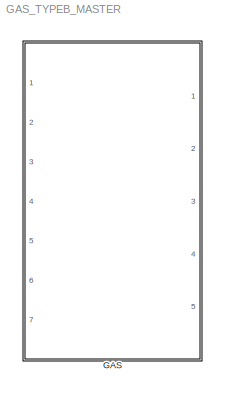
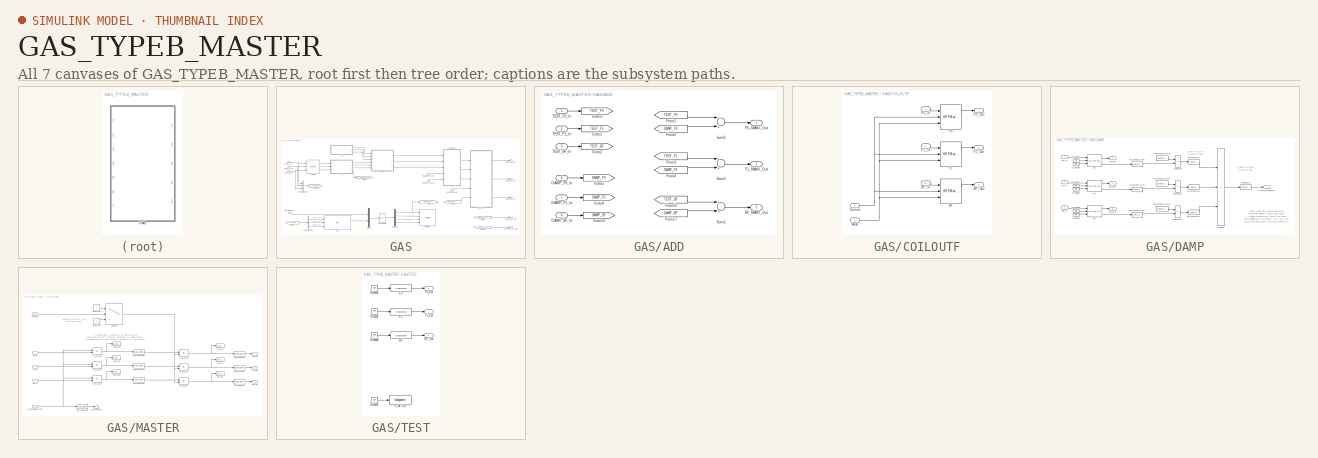
[diagram: thumbnail index - all 7 canvases of the model, root first then tree order]
MODEL GAS_TYPEB_MASTER
KIND library
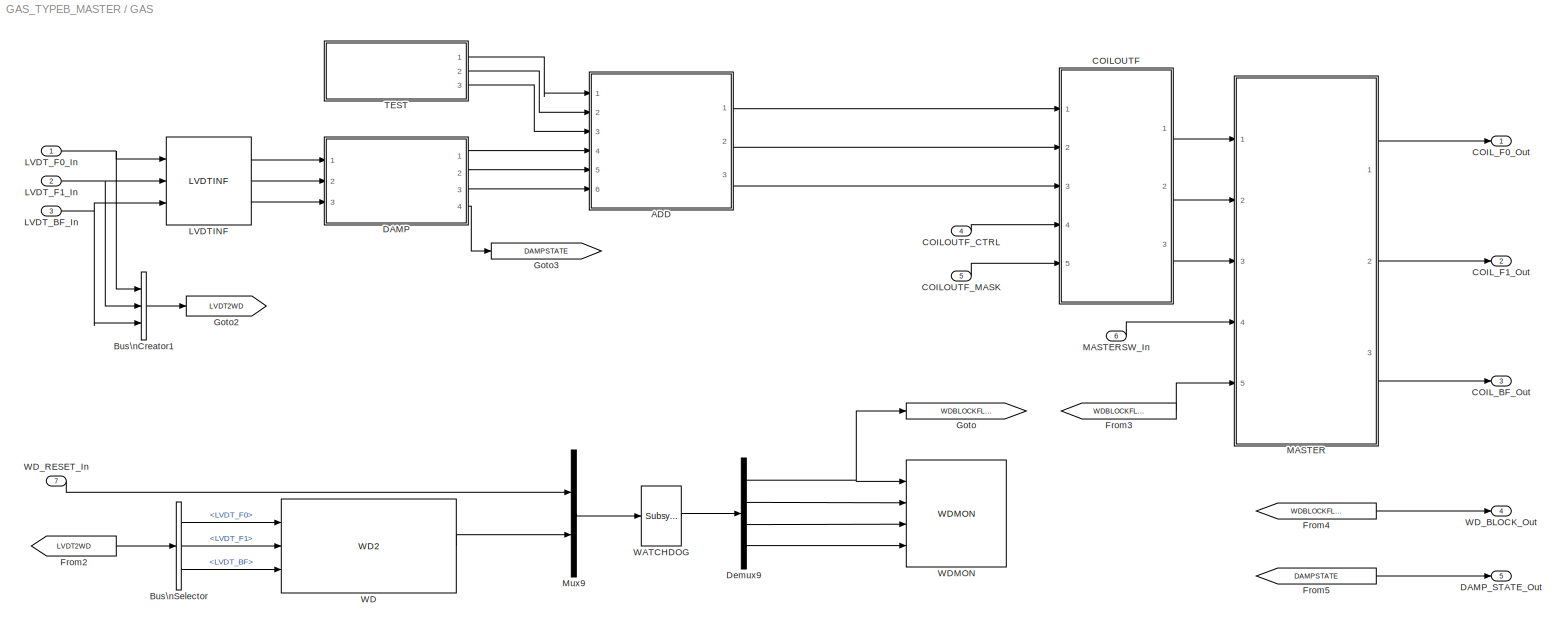
BLOCK [SubSystem] GAS
  Description = SIXOSEMSTAGE_FACE_MASTER
  Ports = [7, 5]
  RequestExecContextInheritance = off
  SID = 1
BLOCK [SubSystem] GAS/ADD
  Ports = [6, 3]
  RequestExecContextInheritance = off
  SID = 9
BLOCK [Outport] GAS/ADD/BF_MAIN_Out
  IconDisplay = Port number
  Port = 3
  SID = 33
BLOCK [Inport] GAS/ADD/DAMP_BF_In
  IconDisplay = Port number
  Port = 6
  SID = 15
BLOCK [Inport] GAS/ADD/DAMP_F0_In
  IconDisplay = Port number
  Port = 4
  SID = 13
BLOCK [Inport] GAS/ADD/DAMP_F1_In
  IconDisplay = Port number
  Port = 5
  SID = 14
BLOCK [Outport] GAS/ADD/F0_MAIN_Out
  IconDisplay = Port number
  SID = 31
BLOCK [Outport] GAS/ADD/F1_MAIN_Out
  IconDisplay = Port number
  Port = 2
  SID = 32
BLOCK [From] GAS/ADD/From1
  CloseFcn = tagdialog Close
  GotoTag = TEST_F0
  SID = 16
BLOCK [From] GAS/ADD/From16
  CloseFcn = tagdialog Close
  GotoTag = TEST_BF
  SID = 17
BLOCK [From] GAS/ADD/From17
  CloseFcn = tagdialog Close
  GotoTag = DAMP_BF
  SID = 18
BLOCK [From] GAS/ADD/From2
  CloseFcn = tagdialog Close
  GotoTag = DAMP_F0
  SID = 19
BLOCK [From] GAS/ADD/From3
  CloseFcn = tagdialog Close
  GotoTag = TEST_F1
  SID = 20
BLOCK [From] GAS/ADD/From4
  CloseFcn = tagdialog Close
  GotoTag = DAMP_F1
  SID = 21
BLOCK [Goto] GAS/ADD/Goto1
  GotoTag = TEST_F1
  SID = 22
BLOCK [Goto] GAS/ADD/Goto12
  GotoTag = DAMP_BF
  SID = 23
BLOCK [Goto] GAS/ADD/Goto2
  GotoTag = TEST_BF
  SID = 24
BLOCK [Goto] GAS/ADD/Goto3
  GotoTag = TEST_F0
  SID = 25
BLOCK [Goto] GAS/ADD/Goto4
  GotoTag = DAMP_F1
  SID = 26
BLOCK [Goto] GAS/ADD/Goto5
  GotoTag = DAMP_F0
  SID = 27
BLOCK [Sum] GAS/ADD/Sum1
  InputSameDT = off
  OutDataTypeStr = Inherit: Inherit via internal rule
  Ports = [2, 1]
  SID = 28
  SaturateOnIntegerOverflow = off
BLOCK [Sum] GAS/ADD/Sum2
  InputSameDT = off
  OutDataTypeStr = Inherit: Inherit via internal rule
  Ports = [2, 1]
  SID = 29
  SaturateOnIntegerOverflow = off
BLOCK [Sum] GAS/ADD/Sum3
  InputSameDT = off
  OutDataTypeStr = Inherit: Inherit via internal rule
  Ports = [2, 1]
  SID = 30
  SaturateOnIntegerOverflow = off
BLOCK [Inport] GAS/ADD/TEST_BF_In
  IconDisplay = Port number
  Port = 3
  SID = 12
BLOCK [Inport] GAS/ADD/TEST_F0_In
  IconDisplay = Port number
  SID = 10
BLOCK [Inport] GAS/ADD/TEST_F1_In
  IconDisplay = Port number
  Port = 2
  SID = 11
BLOCK [BusCreator] GAS/Bus\nCreator1
  DisplayOption = bar
  Inputs = 'LVDT_F0','LVDT_F1','LVDT_BF'
  Ports = [3, 1]
  SID = 34
BLOCK [BusSelector] GAS/Bus\nSelector
  OutputSignals = LVDT_F0,LVDT_F1,LVDT_BF
  Ports = [1, 3]
  SID = 35
BLOCK [SubSystem] GAS/COILOUTF
  Ports = [5, 3]
  RequestExecContextInheritance = off
  SID = 36
BLOCK [Reference] GAS/COILOUTF/BF  REF=cdsFiltCtrl/IIR FM with control
  AttributesFormatString = %<Tag>
  Description = cdsFiltCntrl is the standard IIR filter module (exactly the same as cdsFilt) but with added control data output 'Ctrl'. Filter module digital signal output appears on the first output, which is called 'Val'. 'Ctrl' output has a bit pattern encoding the state of filter's on/off switches (FM1 through FM10). The bit values are:\n                                                                        ...<+4621ch>  <repeated x6 — deduplicated; at blocks: BF, F0, F1>
  Ports = [3, 2]
  SID = 42
  SourceBlock = cdsFiltCtrl/IIR FM with control
  SourceType = SubSystem
  Tag = cdsFiltCtrl
BLOCK [Inport] GAS/COILOUTF/BF_In
  IconDisplay = Port number
  Port = 3
  SID = 39
BLOCK [Outport] GAS/COILOUTF/BF_Out
  IconDisplay = Port number
  Port = 3
  SID = 47
BLOCK [Inport] GAS/COILOUTF/Control
  IconDisplay = Port number
  Port = 4
  SID = 40
BLOCK [Reference] GAS/COILOUTF/F0  REF=cdsFiltCtrl/IIR FM with control
  AttributesFormatString = %<Tag>
  Ports = [3, 2]
  SID = 43
  SourceBlock = cdsFiltCtrl/IIR FM with control
  SourceType = SubSystem
  Tag = cdsFiltCtrl
BLOCK [Inport] GAS/COILOUTF/F0_In
  IconDisplay = Port number
  SID = 37
BLOCK [Outport] GAS/COILOUTF/F0_Out
  IconDisplay = Port number
  SID = 45
BLOCK [Reference] GAS/COILOUTF/F1  REF=cdsFiltCtrl/IIR FM with control
  AttributesFormatString = %<Tag>
  Ports = [3, 2]
  SID = 44
  SourceBlock = cdsFiltCtrl/IIR FM with control
  SourceType = SubSystem
  Tag = cdsFiltCtrl
BLOCK [Inport] GAS/COILOUTF/F1_In
  IconDisplay = Port number
  Port = 2
  SID = 38
BLOCK [Outport] GAS/COILOUTF/F1_Out
  IconDisplay = Port number
  Port = 2
  SID = 46
BLOCK [Inport] GAS/COILOUTF/Mask
  IconDisplay = Port number
  Port = 5
  SID = 41
BLOCK [Inport] GAS/COILOUTF_CTRL
  IconDisplay = Port number
  Port = 4
  SID = 5
BLOCK [Inport] GAS/COILOUTF_MASK
  IconDisplay = Port number
  Port = 5
  SID = 6
BLOCK [Outport] GAS/COIL_BF_Out
  IconDisplay = Port number
  Port = 3
  SID = 197
BLOCK [Outport] GAS/COIL_F0_Out
  IconDisplay = Port number
  SID = 195
BLOCK [Outport] GAS/COIL_F1_Out
  IconDisplay = Port number
  Port = 2
  SID = 196
BLOCK [SubSystem] GAS/DAMP
  Ports = [3, 4]
  RequestExecContextInheritance = off
  SID = 48
BLOCK [Reference] GAS/DAMP/BF  REF=cdsFiltCtrl/IIR FM with control
  AttributesFormatString = %<Tag>
  Ports = [3, 2]
  SID = 52
  SourceBlock = cdsFiltCtrl/IIR FM with control
  SourceType = SubSystem
  Tag = cdsFiltCtrl
BLOCK [Inport] GAS/DAMP/BF_In
  IconDisplay = Port number
  Port = 3
  SID = 51
BLOCK [Outport] GAS/DAMP/BF_Out
  IconDisplay = Port number
  Port = 3
  SID = 77
BLOCK [Reference] GAS/DAMP/BF_STATE_GOOD  REF=cdsEpicsIn/Subsystem
  AttributesFormatString = %<Tag>
  Description = Purpose:                                                                              \nCreate an EPICS input channel connection to the FE realtime controls.                 \n                                                                                      \nOperation:                                                                            \nOutputs value from an EPICS ai record. Value is ...<+266ch>  <repeated x3 — deduplicated; at blocks: BF_STATE_GOOD, F0_STATE_GOOD, F1_STATE_GOOD>
  Ports = [0, 1]
  SID = 53
  SourceBlock = cdsEpicsIn/Subsystem
  SourceType = SubSystem
  Tag = cdsEpicsIn
BLOCK [Reference] GAS/DAMP/BF_STATE_NOW  REF=cdsEpicsOut/Subsystem
  AttributesFormatString = %<Tag>
  Description = Purpose:                                          \nOutput a FE signal to an EPICS channel.           \n                                                  \nOperation:                                        \nTakes input value and passes it to EPICS record.  \n                                                  \nUsage:                                            \nName the part with the desired EPICS...<+14ch>  <repeated x14 — deduplicated; at blocks: BF_STATE_NOW, BF_STATE_OK, F0_STATE_NOW, F0_STATE_OK, F1_STATE_NOW, F1_STATE_OK, STATE_OK, OUT_BFMON, OUT_F0MON, OUT_F1MON, PWD_BFMON, PWD_F0MON, PWD_F1MON, SWITCHMON>
  Ports = [1, 1]
  SID = 54
  SourceBlock = cdsEpicsOut/Subsystem
  SourceType = SubSystem
  Tag = cdsEpicsOutput
BLOCK [Reference] GAS/DAMP/BF_STATE_OK  REF=cdsEpicsOut/Subsystem
  AttributesFormatString = %<Tag>
  Ports = [1, 1]
  SID = 55
  SourceBlock = cdsEpicsOut/Subsystem
  SourceType = SubSystem
  Tag = cdsEpicsOutput
BLOCK [Outport] GAS/DAMP/DAMP_STATE_Out
  IconDisplay = Port number
  Port = 4
  SID = 78
BLOCK [Reference] GAS/DAMP/F0  REF=cdsFiltCtrl/IIR FM with control
  AttributesFormatString = %<Tag>
  Ports = [3, 2]
  SID = 56
  SourceBlock = cdsFiltCtrl/IIR FM with control
  SourceType = SubSystem
  Tag = cdsFiltCtrl
BLOCK [Inport] GAS/DAMP/F0_In
  IconDisplay = Port number
  SID = 49
BLOCK [Outport] GAS/DAMP/F0_Out
  IconDisplay = Port number
  SID = 75
BLOCK [Reference] GAS/DAMP/F0_STATE_GOOD  REF=cdsEpicsIn/Subsystem
  AttributesFormatString = %<Tag>
  Ports = [0, 1]
  SID = 57
  SourceBlock = cdsEpicsIn/Subsystem
  SourceType = SubSystem
  Tag = cdsEpicsIn
BLOCK [Reference] GAS/DAMP/F0_STATE_NOW  REF=cdsEpicsOut/Subsystem
  AttributesFormatString = %<Tag>
  Ports = [1, 1]
  SID = 58
  SourceBlock = cdsEpicsOut/Subsystem
  SourceType = SubSystem
  Tag = cdsEpicsOutput
BLOCK [Reference] GAS/DAMP/F0_STATE_OK  REF=cdsEpicsOut/Subsystem
  AttributesFormatString = %<Tag>
  Ports = [1, 1]
  SID = 59
  SourceBlock = cdsEpicsOut/Subsystem
  SourceType = SubSystem
  Tag = cdsEpicsOutput
BLOCK [Reference] GAS/DAMP/F1  REF=cdsFiltCtrl/IIR FM with control
  AttributesFormatString = %<Tag>
  Ports = [3, 2]
  SID = 60
  SourceBlock = cdsFiltCtrl/IIR FM with control
  SourceType = SubSystem
  Tag = cdsFiltCtrl
BLOCK [Inport] GAS/DAMP/F1_In
  IconDisplay = Port number
  Port = 2
  SID = 50
BLOCK [Outport] GAS/DAMP/F1_Out
  IconDisplay = Port number
  Port = 2
  SID = 76
BLOCK [Reference] GAS/DAMP/F1_STATE_GOOD  REF=cdsEpicsIn/Subsystem
  AttributesFormatString = %<Tag>
  Ports = [0, 1]
  SID = 61
  SourceBlock = cdsEpicsIn/Subsystem
  SourceType = SubSystem
  Tag = cdsEpicsIn
BLOCK [Reference] GAS/DAMP/F1_STATE_NOW  REF=cdsEpicsOut/Subsystem
  AttributesFormatString = %<Tag>
  Ports = [1, 1]
  SID = 62
  SourceBlock = cdsEpicsOut/Subsystem
  SourceType = SubSystem
  Tag = cdsEpicsOutput
BLOCK [Reference] GAS/DAMP/F1_STATE_OK  REF=cdsEpicsOut/Subsystem
  AttributesFormatString = %<Tag>
  Ports = [1, 1]
  SID = 63
  SourceBlock = cdsEpicsOut/Subsystem
  SourceType = SubSystem
  Tag = cdsEpicsOutput
BLOCK [Ground] GAS/DAMP/Ground1
  SID = 64
BLOCK [Ground] GAS/DAMP/Ground2
  SID = 65
BLOCK [Ground] GAS/DAMP/Ground3
  SID = 66
BLOCK [Ground] GAS/DAMP/Ground4
  SID = 67
BLOCK [Ground] GAS/DAMP/Ground6
  SID = 68
BLOCK [Ground] GAS/DAMP/Ground8
  SID = 69
BLOCK [RelationalOperator] GAS/DAMP/Operator
  InputSameDT = off
  Operator = ==
  OutDataTypeStr = boolean
  Ports = [2, 1]
  SID = 70
BLOCK [RelationalOperator] GAS/DAMP/Operator1
  InputSameDT = off
  Operator = ==
  OutDataTypeStr = boolean
  Ports = [2, 1]
  SID = 71
BLOCK [RelationalOperator] GAS/DAMP/Operator2
  InputSameDT = off
  Operator = ==
  OutDataTypeStr = boolean
  Ports = [2, 1]
  SID = 72
BLOCK [Product] GAS/DAMP/Product
  InputSameDT = off
  Inputs = 3
  OutDataTypeStr = Inherit: Inherit via internal rule
  Ports = [3, 1]
  SID = 73
  SaturateOnIntegerOverflow = off
BLOCK [Reference] GAS/DAMP/STATE_OK  REF=cdsEpicsOut/Subsystem
  AttributesFormatString = %<Tag>
  Ports = [1, 1]
  SID = 74
  SourceBlock = cdsEpicsOut/Subsystem
  SourceType = SubSystem
  Tag = cdsEpicsOutput
BLOCK [Outport] GAS/DAMP_STATE_Out
  IconDisplay = Port number
  Port = 5
  SID = 199
BLOCK [Demux] GAS/Demux9
  DisplayOption = bar
  Ports = [1, 4]
  SID = 82
BLOCK [From] GAS/From2
  CloseFcn = tagdialog Close
  GotoTag = LVDT2WD
  SID = 83
BLOCK [From] GAS/From3
  CloseFcn = tagdialog Close
  GotoTag = WDBLOCKFLAG
  SID = 84
BLOCK [From] GAS/From4
  CloseFcn = tagdialog Close
  GotoTag = WDBLOCKFLAG
  SID = 85
BLOCK [From] GAS/From5
  CloseFcn = tagdialog Close
  GotoTag = DAMPSTATE
  SID = 86
BLOCK [Goto] GAS/Goto
  GotoTag = WDBLOCKFLAG
  SID = 87
BLOCK [Goto] GAS/Goto2
  GotoTag = LVDT2WD
  SID = 88
BLOCK [Goto] GAS/Goto3
  GotoTag = DAMPSTATE
  SID = 89
BLOCK [Reference] GAS/LVDTINF  REF=VIS_LIB/LVDTINF
  Ports = [3, 3]
  SID = 203
  SourceBlock = VIS_LIB/LVDTINF
  SourceType = SubSystem
BLOCK [Inport] GAS/LVDT_BF_In
  IconDisplay = Port number
  Port = 3
  SID = 4
BLOCK [Inport] GAS/LVDT_F0_In
  IconDisplay = Port number
  SID = 2
BLOCK [Inport] GAS/LVDT_F1_In
  IconDisplay = Port number
  Port = 2
  SID = 3
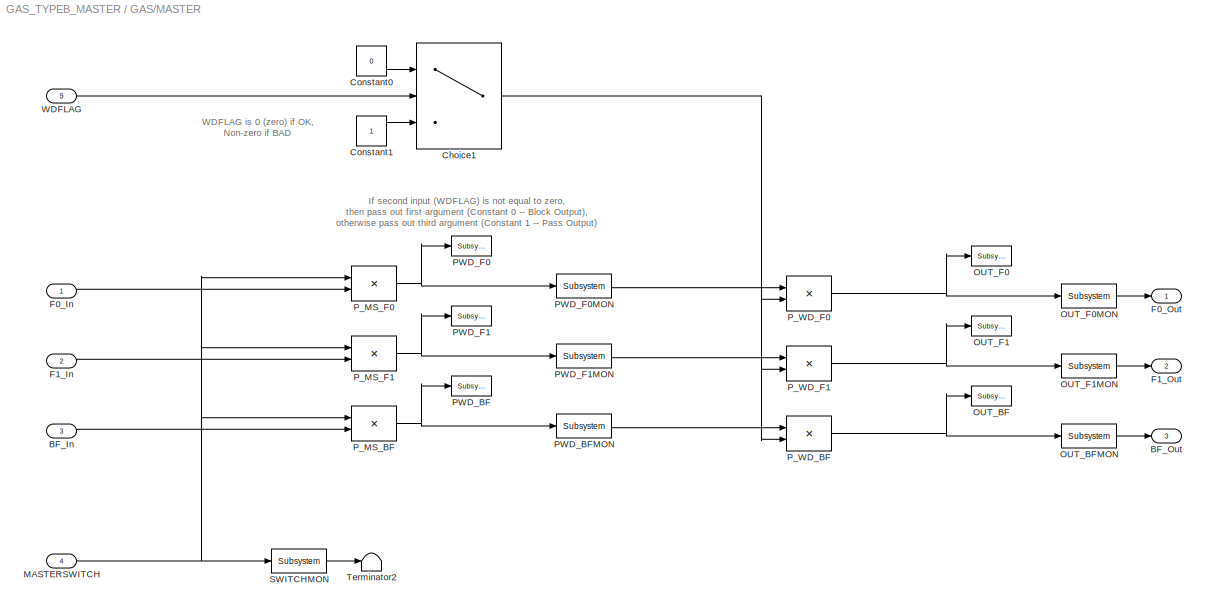
BLOCK [SubSystem] GAS/MASTER
  Ports = [5, 3]
  RequestExecContextInheritance = off
  SID = 100
BLOCK [Inport] GAS/MASTER/BF_In
  IconDisplay = Port number
  Port = 3
  SID = 103
BLOCK [Outport] GAS/MASTER/BF_Out
  IconDisplay = Port number
  Port = 3
  SID = 131
BLOCK [Switch] GAS/MASTER/Choice1
  Criteria = u2 ~= 0
  InputSameDT = off
  SID = 106
  SaturateOnIntegerOverflow = off
  Threshold = 0.5
BLOCK [Constant] GAS/MASTER/Constant0
  SID = 107
  Value = 0
BLOCK [Constant] GAS/MASTER/Constant1
  SID = 108
BLOCK [Inport] GAS/MASTER/F0_In
  IconDisplay = Port number
  SID = 101
BLOCK [Outport] GAS/MASTER/F0_Out
  IconDisplay = Port number
  SID = 129
BLOCK [Inport] GAS/MASTER/F1_In
  IconDisplay = Port number
  Port = 2
  SID = 102
BLOCK [Outport] GAS/MASTER/F1_Out
  IconDisplay = Port number
  Port = 2
  SID = 130
BLOCK [Inport] GAS/MASTER/MASTERSWITCH
  IconDisplay = Port number
  Port = 4
  SID = 104
BLOCK [Reference] GAS/MASTER/OUT_BF  REF=cdsTP/Subsystem
  AttributesFormatString = %<Tag>
  Ports = [1]
  SID = 109
  SourceBlock = cdsTP/Subsystem
  SourceType = SubSystem
  Tag = Test Point
BLOCK [Reference] GAS/MASTER/OUT_BFMON  REF=cdsEpicsOut/Subsystem
  AttributesFormatString = %<Tag>
  Ports = [1, 1]
  SID = 110
  SourceBlock = cdsEpicsOut/Subsystem
  SourceType = SubSystem
  Tag = cdsEpicsOutput
BLOCK [Reference] GAS/MASTER/OUT_F0  REF=cdsTP/Subsystem
  AttributesFormatString = %<Tag>
  Ports = [1]
  SID = 111
  SourceBlock = cdsTP/Subsystem
  SourceType = SubSystem
  Tag = Test Point
BLOCK [Reference] GAS/MASTER/OUT_F0MON  REF=cdsEpicsOut/Subsystem
  AttributesFormatString = %<Tag>
  Ports = [1, 1]
  SID = 112
  SourceBlock = cdsEpicsOut/Subsystem
  SourceType = SubSystem
  Tag = cdsEpicsOutput
BLOCK [Reference] GAS/MASTER/OUT_F1  REF=cdsTP/Subsystem
  AttributesFormatString = %<Tag>
  Ports = [1]
  SID = 113
  SourceBlock = cdsTP/Subsystem
  SourceType = SubSystem
  Tag = Test Point
BLOCK [Reference] GAS/MASTER/OUT_F1MON  REF=cdsEpicsOut/Subsystem
  AttributesFormatString = %<Tag>
  Ports = [1, 1]
  SID = 114
  SourceBlock = cdsEpicsOut/Subsystem
  SourceType = SubSystem
  Tag = cdsEpicsOutput
BLOCK [Reference] GAS/MASTER/PWD_BF  REF=cdsTP/Subsystem
  AttributesFormatString = %<Tag>
  Ports = [1]
  SID = 115
  SourceBlock = cdsTP/Subsystem
  SourceType = SubSystem
  Tag = Test Point
BLOCK [Reference] GAS/MASTER/PWD_BFMON  REF=cdsEpicsOut/Subsystem
  AttributesFormatString = %<Tag>
  Ports = [1, 1]
  SID = 116
  SourceBlock = cdsEpicsOut/Subsystem
  SourceType = SubSystem
  Tag = cdsEpicsOutput
BLOCK [Reference] GAS/MASTER/PWD_F0  REF=cdsTP/Subsystem
  AttributesFormatString = %<Tag>
  Ports = [1]
  SID = 117
  SourceBlock = cdsTP/Subsystem
  SourceType = SubSystem
  Tag = Test Point
BLOCK [Reference] GAS/MASTER/PWD_F0MON  REF=cdsEpicsOut/Subsystem
  AttributesFormatString = %<Tag>
  Ports = [1, 1]
  SID = 118
  SourceBlock = cdsEpicsOut/Subsystem
  SourceType = SubSystem
  Tag = cdsEpicsOutput
BLOCK [Reference] GAS/MASTER/PWD_F1  REF=cdsTP/Subsystem
  AttributesFormatString = %<Tag>
  Ports = [1]
  SID = 119
  SourceBlock = cdsTP/Subsystem
  SourceType = SubSystem
  Tag = Test Point
BLOCK [Reference] GAS/MASTER/PWD_F1MON  REF=cdsEpicsOut/Subsystem
  AttributesFormatString = %<Tag>
  Ports = [1, 1]
  SID = 120
  SourceBlock = cdsEpicsOut/Subsystem
  SourceType = SubSystem
  Tag = cdsEpicsOutput
BLOCK [Product] GAS/MASTER/P_MS_BF
  InputSameDT = off
  OutDataTypeStr = Inherit: Inherit via internal rule
  Ports = [2, 1]
  SID = 121
  SaturateOnIntegerOverflow = off
BLOCK [Product] GAS/MASTER/P_MS_F0
  InputSameDT = off
  OutDataTypeStr = Inherit: Inherit via internal rule
  Ports = [2, 1]
  SID = 122
  SaturateOnIntegerOverflow = off
BLOCK [Product] GAS/MASTER/P_MS_F1
  InputSameDT = off
  OutDataTypeStr = Inherit: Inherit via internal rule
  Ports = [2, 1]
  SID = 123
  SaturateOnIntegerOverflow = off
BLOCK [Product] GAS/MASTER/P_WD_BF
  InputSameDT = off
  OutDataTypeStr = Inherit: Inherit via internal rule
  Ports = [2, 1]
  SID = 124
  SaturateOnIntegerOverflow = off
BLOCK [Product] GAS/MASTER/P_WD_F0
  InputSameDT = off
  OutDataTypeStr = Inherit: Inherit via internal rule
  Ports = [2, 1]
  SID = 125
  SaturateOnIntegerOverflow = off
BLOCK [Product] GAS/MASTER/P_WD_F1
  InputSameDT = off
  OutDataTypeStr = Inherit: Inherit via internal rule
  Ports = [2, 1]
  SID = 126
  SaturateOnIntegerOverflow = off
BLOCK [Reference] GAS/MASTER/SWITCHMON  REF=cdsEpicsOut/Subsystem
  AttributesFormatString = %<Tag>
  Ports = [1, 1]
  SID = 127
  SourceBlock = cdsEpicsOut/Subsystem
  SourceType = SubSystem
  Tag = cdsEpicsOutput
BLOCK [Terminator] GAS/MASTER/Terminator2
  SID = 128
BLOCK [Inport] GAS/MASTER/WDFLAG
  IconDisplay = Port number
  Port = 5
  SID = 105
BLOCK [Inport] GAS/MASTERSW_In
  IconDisplay = Port number
  Port = 6
  SID = 7
BLOCK [Mux] GAS/Mux9
  DisplayOption = bar
  Inputs = 2
  Ports = [2, 1]
  SID = 134
BLOCK [SubSystem] GAS/TEST
  Ports = [0, 3]
  RequestExecContextInheritance = off
  SID = 135
BLOCK [Reference] GAS/TEST/BF  REF=cdsFilt/Subsystem
  AttributesFormatString = %<Tag>
  Description = Purpose:                                                                                                                                                                                                                                  \nStandard CDS IIR filter module.                                                                                                                                     ...<+1302ch>  <repeated x3 — deduplicated; at blocks: BF, F0, F1>
  Ports = [1, 1]
  SID = 136
  SourceBlock = cdsFilt/Subsystem
  SourceType = SubSystem
  Tag = cdsFilt
BLOCK [Outport] GAS/TEST/BF_Out
  IconDisplay = Port number
  Port = 3
  SID = 146
BLOCK [Reference] GAS/TEST/F0  REF=cdsFilt/Subsystem
  AttributesFormatString = %<Tag>
  Ports = [1, 1]
  SID = 137
  SourceBlock = cdsFilt/Subsystem
  SourceType = SubSystem
  Tag = cdsFilt
BLOCK [Outport] GAS/TEST/F0_Out
  IconDisplay = Port number
  SID = 144
BLOCK [Reference] GAS/TEST/F1  REF=cdsFilt/Subsystem
  AttributesFormatString = %<Tag>
  Ports = [1, 1]
  SID = 138
  SourceBlock = cdsFilt/Subsystem
  SourceType = SubSystem
  Tag = cdsFilt
BLOCK [Outport] GAS/TEST/F1_Out
  IconDisplay = Port number
  Port = 2
  SID = 145
BLOCK [Ground] GAS/TEST/Ground1
  SID = 139
BLOCK [Ground] GAS/TEST/Ground2
  SID = 140
BLOCK [Ground] GAS/TEST/Ground3
  SID = 141
BLOCK [Ground] GAS/TEST/Ground7
  SID = 142
BLOCK [Reference] GAS/TEST/STATUS  REF=cdsEpicsBinIn/Subsystem
  AttributesFormatString = %<Tag>
  Description = Purpose:                                                                            \nCreate an EPICS binary (0 or 1) input channel to the FE realtime controls.          \n                                                                                    \nOperation:                                                                          \nOutputs value from an EPICS ai record. Value is binary i...<+252ch>
  Ports = [1, 1]
  SID = 143
  SourceBlock = cdsEpicsBinIn/Subsystem
  SourceType = SubSystem
  Tag = cdsEpicsBinIn
BLOCK [Reference] GAS/WATCHDOG  REF=cdsFunctionCall/Subsystem
  AttributesFormatString = %<Tag>\\n%<Description>
  Description = inline OSEMWATCHDOG <path>
  Ports = [1, 1]
  SID = 147
  SourceBlock = cdsFunctionCall/Subsystem
  SourceType = SubSystem
  Tag = cdsFunctionCall
BLOCK [Reference] GAS/WD  REF=VIS_LIB/WD2
  Ports = [3, 1]
  SID = 200
  SourceBlock = VIS_LIB/WD2
  SourceType = SubSystem
BLOCK [Reference] GAS/WDMON  REF=VIS_LIB/WDMON
  Ports = [4]
  SID = 202
  SourceBlock = VIS_LIB/WDMON
  SourceType = SubSystem
BLOCK [Outport] GAS/WD_BLOCK_Out
  IconDisplay = Port number
  Port = 4
  SID = 198
BLOCK [Inport] GAS/WD_RESET_In
  IconDisplay = Port number
  Port = 7
  SID = 8
ANNOTATION GAS/DAMP: 1 (one) if GOOD\n0 (zero) if BAD
ANNOTATION GAS/DAMP: Each DAMP filter output bitword is \ncompared against a known good state.\nIf equal to good state, then a 1 is output \nand multiplied into the product. So, if any DOF\nis not in its good state, the whole product is 0.
ANNOTATION GAS/MASTER: If second input (WDFLAG) is not equal to zero, \nthen pass out first argument (Constant 0 -- Block Output), \notherwise pass out third argument (Constant 1 -- Pass Output)
ANNOTATION GAS/MASTER: WDFLAG is 0 (zero) if OK,\nNon-zero if BAD
LINE GAS/ADD/DAMP_BF_In:1 -> GAS/ADD/Goto12:1
LINE GAS/ADD/DAMP_F0_In:1 -> GAS/ADD/Goto5:1
LINE GAS/ADD/DAMP_F1_In:1 -> GAS/ADD/Goto4:1
LINE GAS/ADD/From16:1 -> GAS/ADD/Sum1:1
LINE GAS/ADD/From17:1 -> GAS/ADD/Sum1:2
LINE GAS/ADD/From1:1 -> GAS/ADD/Sum2:1
LINE GAS/ADD/From2:1 -> GAS/ADD/Sum2:2
LINE GAS/ADD/From3:1 -> GAS/ADD/Sum3:1
LINE GAS/ADD/From4:1 -> GAS/ADD/Sum3:2
LINE GAS/ADD/Sum1:1 -> GAS/ADD/BF_MAIN_Out:1
LINE GAS/ADD/Sum2:1 -> GAS/ADD/F0_MAIN_Out:1
LINE GAS/ADD/Sum3:1 -> GAS/ADD/F1_MAIN_Out:1
LINE GAS/ADD/TEST_BF_In:1 -> GAS/ADD/Goto2:1
LINE GAS/ADD/TEST_F0_In:1 -> GAS/ADD/Goto3:1
LINE GAS/ADD/TEST_F1_In:1 -> GAS/ADD/Goto1:1
LINE GAS/ADD:1 -> GAS/COILOUTF:1
LINE GAS/ADD:2 -> GAS/COILOUTF:2
LINE GAS/ADD:3 -> GAS/COILOUTF:3
LINE GAS/Bus\nCreator1:1 -> GAS/Goto2:1
LINE GAS/Bus\nSelector:1 -> GAS/WD:1
LINE GAS/Bus\nSelector:2 -> GAS/WD:2
LINE GAS/Bus\nSelector:3 -> GAS/WD:3
LINE GAS/COILOUTF/BF:1 -> GAS/COILOUTF/BF_Out:1
LINE GAS/COILOUTF/BF_In:1 -> GAS/COILOUTF/BF:1
NET GAS/COILOUTF/Control:1 -> GAS/COILOUTF/BF:2, GAS/COILOUTF/F0:2, GAS/COILOUTF/F1:2
LINE GAS/COILOUTF/F0:1 -> GAS/COILOUTF/F0_Out:1
LINE GAS/COILOUTF/F0_In:1 -> GAS/COILOUTF/F0:1
LINE GAS/COILOUTF/F1:1 -> GAS/COILOUTF/F1_Out:1
LINE GAS/COILOUTF/F1_In:1 -> GAS/COILOUTF/F1:1
NET GAS/COILOUTF/Mask:1 -> GAS/COILOUTF/BF:3, GAS/COILOUTF/F0:3, GAS/COILOUTF/F1:3
LINE GAS/COILOUTF:1 -> GAS/MASTER:1
LINE GAS/COILOUTF:2 -> GAS/MASTER:2
LINE GAS/COILOUTF:3 -> GAS/MASTER:3
LINE GAS/COILOUTF_CTRL:1 -> GAS/COILOUTF:4
LINE GAS/COILOUTF_MASK:1 -> GAS/COILOUTF:5
LINE GAS/DAMP/BF:1 -> GAS/DAMP/BF_Out:1
LINE GAS/DAMP/BF:2 -> GAS/DAMP/BF_STATE_NOW:1
LINE GAS/DAMP/BF_In:1 -> GAS/DAMP/BF:1
LINE GAS/DAMP/BF_STATE_GOOD:1 -> GAS/DAMP/Operator2:1
LINE GAS/DAMP/BF_STATE_NOW:1 -> GAS/DAMP/Operator2:2
LINE GAS/DAMP/BF_STATE_OK:1 -> GAS/DAMP/Product:3
LINE GAS/DAMP/F0:1 -> GAS/DAMP/F0_Out:1
LINE GAS/DAMP/F0:2 -> GAS/DAMP/F0_STATE_NOW:1
LINE GAS/DAMP/F0_In:1 -> GAS/DAMP/F0:1
LINE GAS/DAMP/F0_STATE_GOOD:1 -> GAS/DAMP/Operator:1
LINE GAS/DAMP/F0_STATE_NOW:1 -> GAS/DAMP/Operator:2
LINE GAS/DAMP/F0_STATE_OK:1 -> GAS/DAMP/Product:1
LINE GAS/DAMP/F1:1 -> GAS/DAMP/F1_Out:1
LINE GAS/DAMP/F1:2 -> GAS/DAMP/F1_STATE_NOW:1
LINE GAS/DAMP/F1_In:1 -> GAS/DAMP/F1:1
LINE GAS/DAMP/F1_STATE_GOOD:1 -> GAS/DAMP/Operator1:1
LINE GAS/DAMP/F1_STATE_NOW:1 -> GAS/DAMP/Operator1:2
LINE GAS/DAMP/F1_STATE_OK:1 -> GAS/DAMP/Product:2
LINE GAS/DAMP/Ground1:1 -> GAS/DAMP/F1:2
LINE GAS/DAMP/Ground2:1 -> GAS/DAMP/F1:3
LINE GAS/DAMP/Ground3:1 -> GAS/DAMP/BF:2
LINE GAS/DAMP/Ground4:1 -> GAS/DAMP/BF:3
LINE GAS/DAMP/Ground6:1 -> GAS/DAMP/F0:2
LINE GAS/DAMP/Ground8:1 -> GAS/DAMP/F0:3
LINE GAS/DAMP/Operator1:1 -> GAS/DAMP/F1_STATE_OK:1
LINE GAS/DAMP/Operator2:1 -> GAS/DAMP/BF_STATE_OK:1
LINE GAS/DAMP/Operator:1 -> GAS/DAMP/F0_STATE_OK:1
LINE GAS/DAMP/Product:1 -> GAS/DAMP/STATE_OK:1
LINE GAS/DAMP/STATE_OK:1 -> GAS/DAMP/DAMP_STATE_Out:1
LINE GAS/DAMP:1 -> GAS/ADD:4
LINE GAS/DAMP:2 -> GAS/ADD:5
LINE GAS/DAMP:3 -> GAS/ADD:6
LINE GAS/DAMP:4 -> GAS/Goto3:1
NET GAS/Demux9:1 -> GAS/Goto:1, GAS/WDMON:1
LINE GAS/Demux9:2 -> GAS/WDMON:2
LINE GAS/Demux9:3 -> GAS/WDMON:3
LINE GAS/Demux9:4 -> GAS/WDMON:4
LINE GAS/From2:1 -> GAS/Bus\nSelector:1
LINE GAS/From3:1 -> GAS/MASTER:5
LINE GAS/From4:1 -> GAS/WD_BLOCK_Out:1
LINE GAS/From5:1 -> GAS/DAMP_STATE_Out:1
LINE GAS/LVDTINF:1 -> GAS/DAMP:1
LINE GAS/LVDTINF:2 -> GAS/DAMP:2
LINE GAS/LVDTINF:3 -> GAS/DAMP:3
NET GAS/LVDT_BF_In:1 -> GAS/Bus\nCreator1:3, GAS/LVDTINF:3
NET GAS/LVDT_F0_In:1 -> GAS/Bus\nCreator1:1, GAS/LVDTINF:1
NET GAS/LVDT_F1_In:1 -> GAS/Bus\nCreator1:2, GAS/LVDTINF:2
LINE GAS/MASTER/BF_In:1 -> GAS/MASTER/P_MS_BF:2
NET GAS/MASTER/Choice1:1 -> GAS/MASTER/P_WD_BF:2, GAS/MASTER/P_WD_F0:2, GAS/MASTER/P_WD_F1:2
LINE GAS/MASTER/Constant0:1 -> GAS/MASTER/Choice1:1
LINE GAS/MASTER/Constant1:1 -> GAS/MASTER/Choice1:3
LINE GAS/MASTER/F0_In:1 -> GAS/MASTER/P_MS_F0:2
LINE GAS/MASTER/F1_In:1 -> GAS/MASTER/P_MS_F1:2
NET GAS/MASTER/MASTERSWITCH:1 -> GAS/MASTER/P_MS_BF:1, GAS/MASTER/P_MS_F0:1, GAS/MASTER/P_MS_F1:1, GAS/MASTER/SWITCHMON:1
LINE GAS/MASTER/OUT_BFMON:1 -> GAS/MASTER/BF_Out:1
LINE GAS/MASTER/OUT_F0MON:1 -> GAS/MASTER/F0_Out:1
LINE GAS/MASTER/OUT_F1MON:1 -> GAS/MASTER/F1_Out:1
LINE GAS/MASTER/PWD_BFMON:1 -> GAS/MASTER/P_WD_BF:1
LINE GAS/MASTER/PWD_F0MON:1 -> GAS/MASTER/P_WD_F0:1
LINE GAS/MASTER/PWD_F1MON:1 -> GAS/MASTER/P_WD_F1:1
NET GAS/MASTER/P_MS_BF:1 -> GAS/MASTER/PWD_BF:1, GAS/MASTER/PWD_BFMON:1
NET GAS/MASTER/P_MS_F0:1 -> GAS/MASTER/PWD_F0:1, GAS/MASTER/PWD_F0MON:1
NET GAS/MASTER/P_MS_F1:1 -> GAS/MASTER/PWD_F1:1, GAS/MASTER/PWD_F1MON:1
NET GAS/MASTER/P_WD_BF:1 -> GAS/MASTER/OUT_BF:1, GAS/MASTER/OUT_BFMON:1
NET GAS/MASTER/P_WD_F0:1 -> GAS/MASTER/OUT_F0:1, GAS/MASTER/OUT_F0MON:1
NET GAS/MASTER/P_WD_F1:1 -> GAS/MASTER/OUT_F1:1, GAS/MASTER/OUT_F1MON:1
LINE GAS/MASTER/SWITCHMON:1 -> GAS/MASTER/Terminator2:1
LINE GAS/MASTER/WDFLAG:1 -> GAS/MASTER/Choice1:2
LINE GAS/MASTER:1 -> GAS/COIL_F0_Out:1
LINE GAS/MASTER:2 -> GAS/COIL_F1_Out:1
LINE GAS/MASTER:3 -> GAS/COIL_BF_Out:1
LINE GAS/MASTERSW_In:1 -> GAS/MASTER:4
LINE GAS/Mux9:1 -> GAS/WATCHDOG:1
LINE GAS/TEST/BF:1 -> GAS/TEST/BF_Out:1
LINE GAS/TEST/F0:1 -> GAS/TEST/F0_Out:1
LINE GAS/TEST/F1:1 -> GAS/TEST/F1_Out:1
LINE GAS/TEST/Ground1:1 -> GAS/TEST/F0:1
LINE GAS/TEST/Ground2:1 -> GAS/TEST/F1:1
LINE GAS/TEST/Ground3:1 -> GAS/TEST/BF:1
LINE GAS/TEST/Ground7:1 -> GAS/TEST/STATUS:1
LINE GAS/TEST:1 -> GAS/ADD:1
LINE GAS/TEST:2 -> GAS/ADD:2
LINE GAS/TEST:3 -> GAS/ADD:3
LINE GAS/WATCHDOG:1 -> GAS/Demux9:1
LINE GAS/WD:1 -> GAS/Mux9:2
LINE GAS/WD_RESET_In:1 -> GAS/Mux9:1
note: NET lines group one-source signal fan-out (src -> all destinations, sorted); 1:1 wires keep LINE
note: 1 file-system path scrubbed to <path> (not preserved elsewhere — flat text is the only slx artifact)
